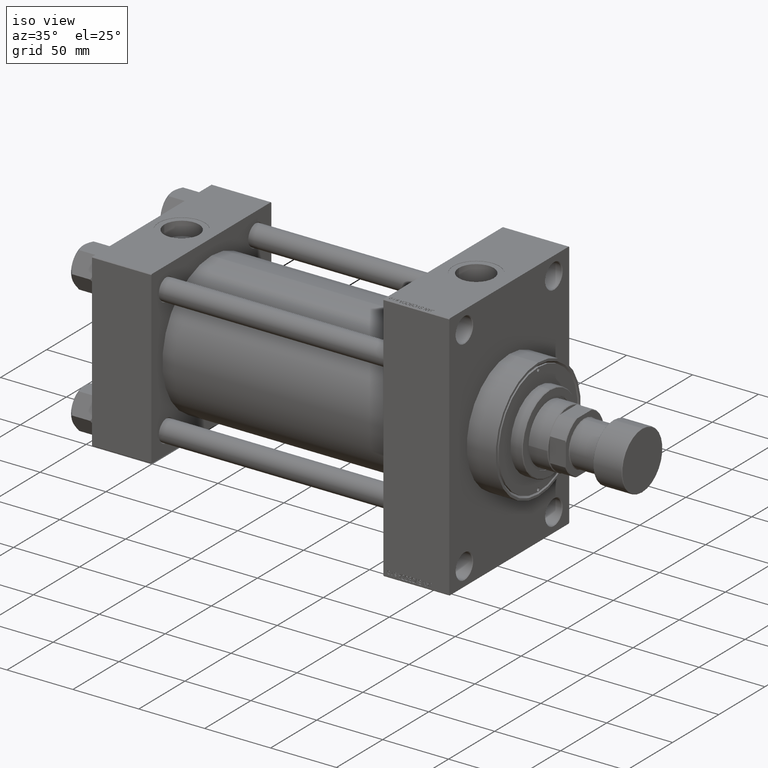
[diagram: clean part render]
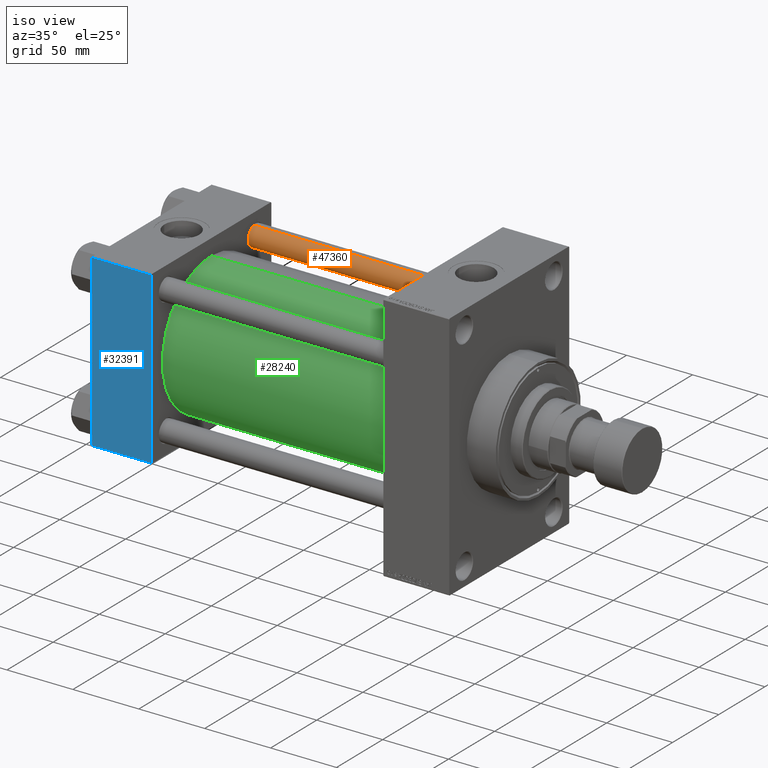
[diagram: same view with three faces highlighted in distinct colors, each labeled with its STEP entity id]
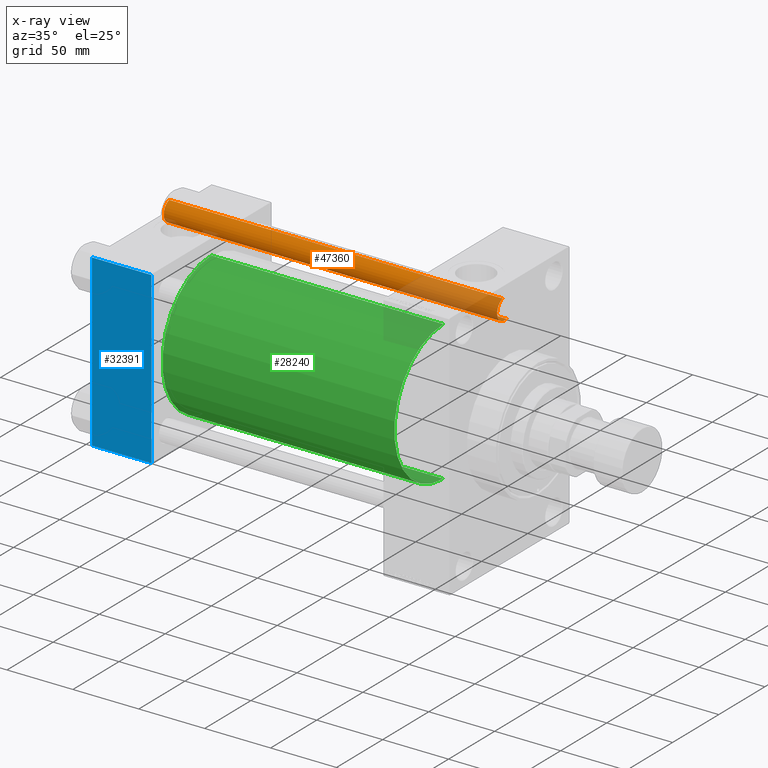
[diagram: x-ray of the same camera — body ghosted, the three highlighted faces saturated]
A machine part, iso view with three faces highlighted in distinct colors.
The next image is the same camera in x-ray (body ghosted, the three faces saturated) — at least one of them is partly hidden behind the body in this view.
Their STEP definitions:

[orange] entity #47360 — the highlighted cylindrical surface (edge-blend (fillet) strip) has radius 8 mm, axis along (-1, -0, 0).
#1102 = EDGE_CURVE ( 'NONE', #17862, #26603, #2438, .T. ) ;
#2438 = LINE ( 'NONE', #31756, #12775 ) ;
#3775 = DIRECTION ( 'NONE',  ( -1.000000000000000000, 0.000000000000000000, 0.000000000000000000 ) ) ;
#4811 = ORIENTED_EDGE ( 'NONE', *, *, #28473, .T. ) ;
#5350 = CIRCLE ( 'NONE', #31115, 8.000000000000000000 ) ;
#5366 = AXIS2_PLACEMENT_3D ( 'NONE', #44831, #18903, #3775 ) ;
#8149 = CYLINDRICAL_SURFACE ( 'NONE', #5366, 8.000000000000000000 ) ;
#10231 = DIRECTION ( 'NONE',  ( 0.000000000000000000, 0.000000000000000000, -1.000000000000000000 ) ) ;
#12775 = VECTOR ( 'NONE', #13179, 1000.000000000000000 ) ;
#13179 = DIRECTION ( 'NONE',  ( -0.000000000000000000, -0.000000000000000000, -1.000000000000000000 ) ) ;
#14382 = CARTESIAN_POINT ( 'NONE',  ( 8.000000000000000000, 9.797174393178825657E-16, 254.0000000000000000 ) ) ;
#15489 = CIRCLE ( 'NONE', #23301, 8.000000000000000000 ) ;
#17795 = DIRECTION ( 'NONE',  ( 1.000000000000000000, 0.000000000000000000, 0.000000000000000000 ) ) ;
#17862 = VERTEX_POINT ( 'NONE', #43606 ) ;
#18903 = DIRECTION ( 'NONE',  ( -0.000000000000000000, -0.000000000000000000, -1.000000000000000000 ) ) ;
#21914 = CARTESIAN_POINT ( 'NONE',  ( -8.000000000000000000, 0.000000000000000000, 0.5000000000000004441 ) ) ;
#23301 = AXIS2_PLACEMENT_3D ( 'NONE', #45799, #42141, #31590 ) ;
#24236 = ORIENTED_EDGE ( 'NONE', *, *, #1102, .T. ) ;
#24412 = CARTESIAN_POINT ( 'NONE',  ( 8.000000000000000000, 9.797174393178825657E-16, 253.5000000000000568 ) ) ;
#26603 = VERTEX_POINT ( 'NONE', #21914 ) ;
#28473 = EDGE_CURVE ( 'NONE', #32170, #17862, #5350, .T. ) ;
#31115 = AXIS2_PLACEMENT_3D ( 'NONE', #47623, #10231, #17795 ) ;
#31590 = DIRECTION ( 'NONE',  ( 1.000000000000000000, 0.000000000000000000, 0.000000000000000000 ) ) ;
#31756 = CARTESIAN_POINT ( 'NONE',  ( -8.000000000000000000, 0.000000000000000000, 254.0000000000000000 ) ) ;
#32087 = EDGE_CURVE ( 'NONE', #32170, #32094, #42559, .T. ) ;
#32094 = VERTEX_POINT ( 'NONE', #47646 ) ;
#32170 = VERTEX_POINT ( 'NONE', #24412 ) ;
#34525 = ORIENTED_EDGE ( 'NONE', *, *, #47539, .T. ) ;
#35694 = DIRECTION ( 'NONE',  ( -0.000000000000000000, -0.000000000000000000, -1.000000000000000000 ) ) ;
#35902 = VECTOR ( 'NONE', #35694, 1000.000000000000000 ) ;
#37429 = ORIENTED_EDGE ( 'NONE', *, *, #32087, .F. ) ;
#41418 = FACE_OUTER_BOUND ( 'NONE', #43225, .T. ) ;
#42141 = DIRECTION ( 'NONE',  ( -0.000000000000000000, -0.000000000000000000, 1.000000000000000000 ) ) ;
#42559 = LINE ( 'NONE', #14382, #35902 ) ;
#43225 = EDGE_LOOP ( 'NONE', ( #37429, #4811, #24236, #34525 ) ) ;
#43606 = CARTESIAN_POINT ( 'NONE',  ( -8.000000000000000000, 0.000000000000000000, 253.5000000000000568 ) ) ;
#44831 = CARTESIAN_POINT ( 'NONE',  ( 0.000000000000000000, 0.000000000000000000, 254.0000000000000000 ) ) ;
#45799 = CARTESIAN_POINT ( 'NONE',  ( 0.000000000000000000, 0.000000000000000000, 0.5000000000000004441 ) ) ;
#47360 = ADVANCED_FACE ( 'NONE', ( #41418 ), #8149, .T. ) ;
#47539 = EDGE_CURVE ( 'NONE', #26603, #32094, #15489, .T. ) ;
#47623 = CARTESIAN_POINT ( 'NONE',  ( 0.000000000000000000, 0.000000000000000000, 253.5000000000000568 ) ) ;
#47646 = CARTESIAN_POINT ( 'NONE',  ( 8.000000000000000000, 9.797174393178825657E-16, 0.5000000000000004441 ) ) ;

[blue] entity #32391 — the highlighted planar face has unit normal (0, 1, 0).
#4394 = EDGE_CURVE ( 'NONE', #44506, #43543, #7440, .T. ) ;
#4844 = ORIENTED_EDGE ( 'NONE', *, *, #4394, .T. ) ;
#4855 = PLANE ( 'NONE',  #20286 ) ;
#5747 = LINE ( 'NONE', #20640, #47373 ) ;
#7440 = LINE ( 'NONE', #26954, #45659 ) ;
#8401 = DIRECTION ( 'NONE',  ( 0.000000000000000000, 0.000000000000000000, -1.000000000000000000 ) ) ;
#8518 = CARTESIAN_POINT ( 'NONE',  ( 0.000000000000000000, -65.00000000000000000, -64.49999999999991473 ) ) ;
#9253 = DIRECTION ( 'NONE',  ( 0.000000000000000000, -0.000000000000000000, 1.000000000000000000 ) ) ;
#9752 = DIRECTION ( 'NONE',  ( -1.000000000000000000, 0.000000000000000000, 0.000000000000000000 ) ) ;
#10157 = ORIENTED_EDGE ( 'NONE', *, *, #38610, .F. ) ;
#12422 = FACE_OUTER_BOUND ( 'NONE', #45940, .T. ) ;
#14508 = DIRECTION ( 'NONE',  ( 1.000000000000000000, 0.000000000000000000, 0.000000000000000000 ) ) ;
#14717 = VERTEX_POINT ( 'NONE', #29274 ) ;
#14969 = DIRECTION ( 'NONE',  ( 0.000000000000000000, 0.000000000000000000, -1.000000000000000000 ) ) ;
#15823 = CARTESIAN_POINT ( 'NONE',  ( 45.00000000000000000, -65.00000000000000000, 65.00000000000000000 ) ) ;
#16698 = ORIENTED_EDGE ( 'NONE', *, *, #29344, .T. ) ;
#20146 = VECTOR ( 'NONE', #9752, 1000.000000000000000 ) ;
#20286 = AXIS2_PLACEMENT_3D ( 'NONE', #15823, #42025, #9253 ) ;
#20640 = CARTESIAN_POINT ( 'NONE',  ( 45.00000000000000000, -65.00000000000000000, -64.49999999999991473 ) ) ;
#22550 = CARTESIAN_POINT ( 'NONE',  ( 45.00000000000000000, -65.00000000000000000, 65.00000000000000000 ) ) ;
#25998 = EDGE_CURVE ( 'NONE', #43543, #44810, #5747, .T. ) ;
#26954 = CARTESIAN_POINT ( 'NONE',  ( 0.000000000000000000, -65.00000000000000000, 65.00000000000000000 ) ) ;
#28306 = CARTESIAN_POINT ( 'NONE',  ( 45.00000000000000000, -65.00000000000000000, 64.50000000000000000 ) ) ;
#29274 = CARTESIAN_POINT ( 'NONE',  ( 45.00000000000000000, -65.00000000000000000, 64.50000000000000000 ) ) ;
#29344 = EDGE_CURVE ( 'NONE', #14717, #44506, #32468, .T. ) ;
#31476 = CARTESIAN_POINT ( 'NONE',  ( 45.00000000000000000, -65.00000000000000000, -64.49999999999991473 ) ) ;
#32357 = LINE ( 'NONE', #22550, #43428 ) ;
#32391 = ADVANCED_FACE ( 'NONE', ( #12422 ), #4855, .F. ) ;
#32468 = LINE ( 'NONE', #28306, #20146 ) ;
#38610 = EDGE_CURVE ( 'NONE', #14717, #44810, #32357, .T. ) ;
#39376 = CARTESIAN_POINT ( 'NONE',  ( 0.000000000000000000, -65.00000000000000000, 64.50000000000000000 ) ) ;
#42025 = DIRECTION ( 'NONE',  ( -0.000000000000000000, 1.000000000000000000, 0.000000000000000000 ) ) ;
#42720 = ORIENTED_EDGE ( 'NONE', *, *, #25998, .T. ) ;
#43428 = VECTOR ( 'NONE', #14969, 1000.000000000000000 ) ;
#43543 = VERTEX_POINT ( 'NONE', #8518 ) ;
#44506 = VERTEX_POINT ( 'NONE', #39376 ) ;
#44810 = VERTEX_POINT ( 'NONE', #31476 ) ;
#45659 = VECTOR ( 'NONE', #8401, 1000.000000000000000 ) ;
#45940 = EDGE_LOOP ( 'NONE', ( #4844, #42720, #10157, #16698 ) ) ;
#47373 = VECTOR ( 'NONE', #14508, 1000.000000000000000 ) ;

[green] entity #28240 — the highlighted cylindrical surface (partial cylindrical patch) has radius 53 mm, axis along (-1, -0, -0).
#994 = CARTESIAN_POINT ( 'NONE',  ( 220.9999999999999716, 3.888542821515762466E-15, -53.00000000000000711 ) ) ;
#4647 = FACE_OUTER_BOUND ( 'NONE', #42874, .T. ) ;
#5445 = EDGE_CURVE ( 'NONE', #42119, #10064, #22341, .T. ) ;
#7544 = VECTOR ( 'NONE', #9941, 1000.000000000000000 ) ;
#7979 = LINE ( 'NONE', #15049, #35830 ) ;
#8060 = DIRECTION ( 'NONE',  ( -1.000000000000000000, -0.000000000000000000, -0.000000000000000000 ) ) ;
#8073 = EDGE_CURVE ( 'NONE', #13675, #19822, #8768, .T. ) ;
#8549 = DIRECTION ( 'NONE',  ( 0.000000000000000000, 0.000000000000000000, 1.000000000000000000 ) ) ;
#8768 = CIRCLE ( 'NONE', #42349, 53.00000000000000711 ) ;
#9215 = AXIS2_PLACEMENT_3D ( 'NONE', #45957, #8060, #8549 ) ;
#9341 = ORIENTED_EDGE ( 'NONE', *, *, #47918, .T. ) ;
#9941 = DIRECTION ( 'NONE',  ( -1.000000000000000000, -0.000000000000000000, -0.000000000000000000 ) ) ;
#10064 = VERTEX_POINT ( 'NONE', #45759 ) ;
#11599 = CARTESIAN_POINT ( 'NONE',  ( 220.9999999999999716, -2.602085213965210642E-15, 0.000000000000000000 ) ) ;
#13675 = VERTEX_POINT ( 'NONE', #21320 ) ;
#15049 = CARTESIAN_POINT ( 'NONE',  ( 220.9999999999999716, -2.602085213965210642E-15, 53.00000000000000711 ) ) ;
#18134 = CARTESIAN_POINT ( 'NONE',  ( 44.99999999999998579, -2.602085213965210642E-15, 0.000000000000000000 ) ) ;
#18374 = DIRECTION ( 'NONE',  ( 0.000000000000000000, 0.000000000000000000, 1.000000000000000000 ) ) ;
#18496 = DIRECTION ( 'NONE',  ( -1.000000000000000000, -0.000000000000000000, -0.000000000000000000 ) ) ;
#19822 = VERTEX_POINT ( 'NONE', #994 ) ;
#20365 = EDGE_CURVE ( 'NONE', #19822, #10064, #20927, .T. ) ;
#20927 = LINE ( 'NONE', #35863, #7544 ) ;
#21320 = CARTESIAN_POINT ( 'NONE',  ( 220.9999999999999716, -2.602085213965210642E-15, 53.00000000000000711 ) ) ;
#22341 = CIRCLE ( 'NONE', #33312, 53.00000000000000711 ) ;
#22475 = ORIENTED_EDGE ( 'NONE', *, *, #20365, .F. ) ;
#26009 = DIRECTION ( 'NONE',  ( 1.000000000000000000, 0.000000000000000000, 0.000000000000000000 ) ) ;
#26857 = CYLINDRICAL_SURFACE ( 'NONE', #9215, 53.00000000000000711 ) ;
#28240 = ADVANCED_FACE ( 'NONE', ( #4647 ), #26857, .T. ) ;
#28349 = ORIENTED_EDGE ( 'NONE', *, *, #8073, .F. ) ;
#31648 = CARTESIAN_POINT ( 'NONE',  ( 44.99999999999998579, -2.602085213965210642E-15, 53.00000000000000711 ) ) ;
#33312 = AXIS2_PLACEMENT_3D ( 'NONE', #18134, #47962, #18374 ) ;
#34009 = ORIENTED_EDGE ( 'NONE', *, *, #5445, .T. ) ;
#35830 = VECTOR ( 'NONE', #18496, 1000.000000000000000 ) ;
#35863 = CARTESIAN_POINT ( 'NONE',  ( 220.9999999999999716, 3.888542821515762466E-15, -53.00000000000000711 ) ) ;
#42119 = VERTEX_POINT ( 'NONE', #31648 ) ;
#42349 = AXIS2_PLACEMENT_3D ( 'NONE', #11599, #26009, #45105 ) ;
#42874 = EDGE_LOOP ( 'NONE', ( #22475, #28349, #9341, #34009 ) ) ;
#45105 = DIRECTION ( 'NONE',  ( 0.000000000000000000, 0.000000000000000000, -1.000000000000000000 ) ) ;
#45759 = CARTESIAN_POINT ( 'NONE',  ( 44.99999999999998579, 3.888542821515762466E-15, -53.00000000000000711 ) ) ;
#45957 = CARTESIAN_POINT ( 'NONE',  ( 220.9999999999999716, -2.602085213965210642E-15, 0.000000000000000000 ) ) ;
#47918 = EDGE_CURVE ( 'NONE', #13675, #42119, #7979, .T. ) ;
#47962 = DIRECTION ( 'NONE',  ( 1.000000000000000000, -0.000000000000000000, 0.000000000000000000 ) ) ;